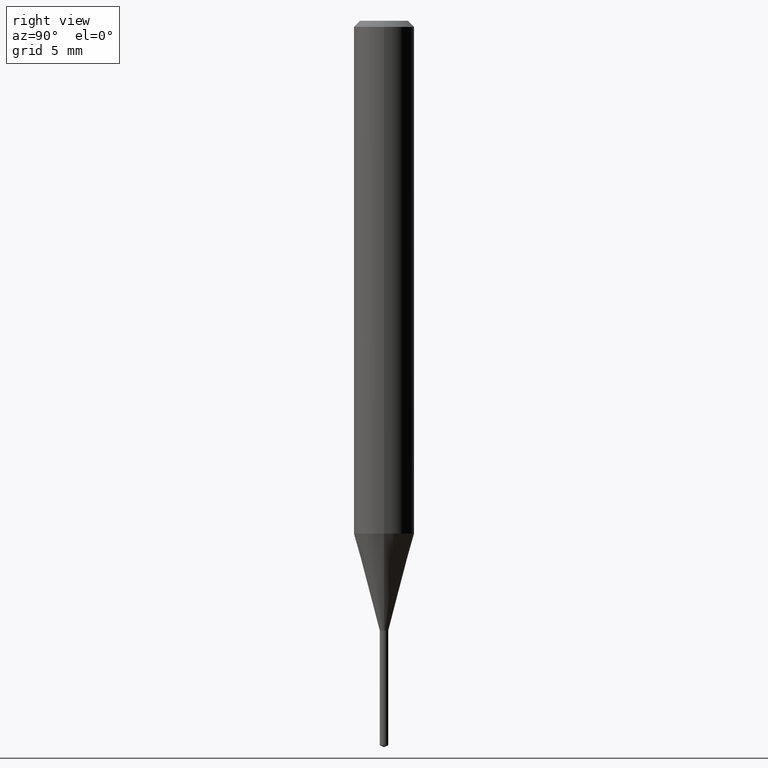
[diagram: clean part render]
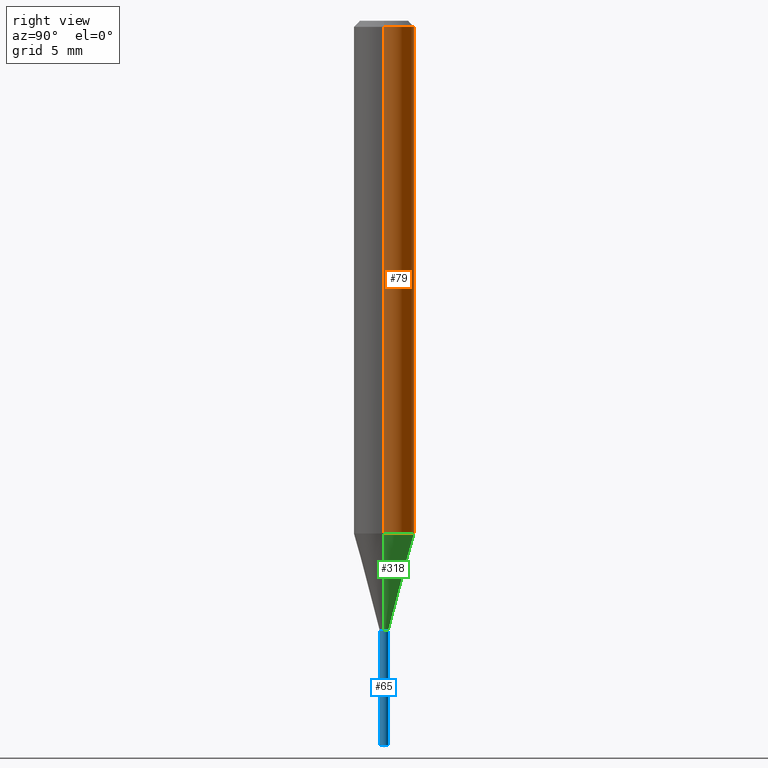
[diagram: same view with three faces highlighted in distinct colors, each labeled with its STEP entity id]
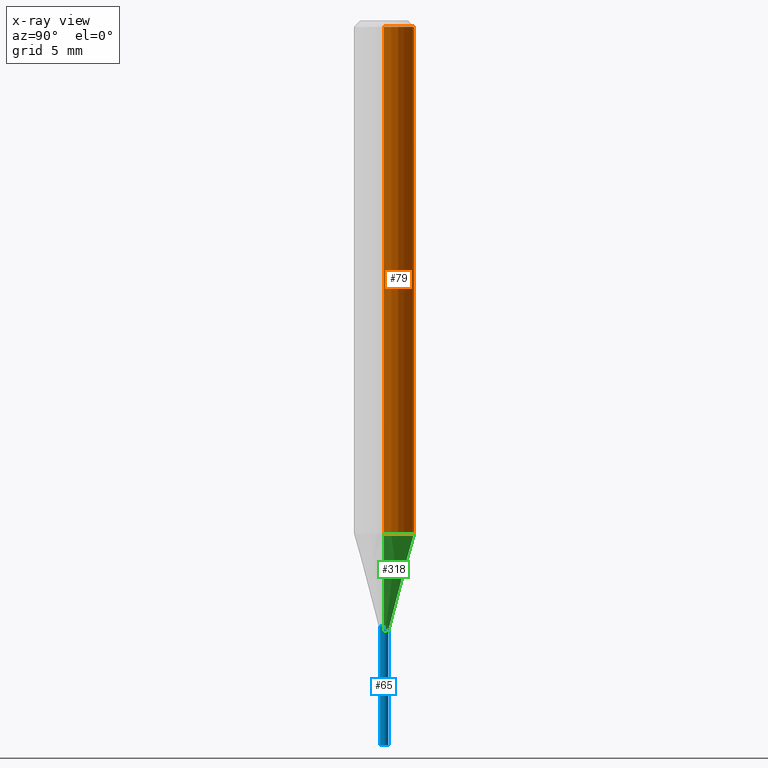
[diagram: x-ray of the same camera — body ghosted, the three highlighted faces saturated]
A machine part, right view with three faces highlighted in distinct colors.
The next image is the same camera in x-ray (body ghosted, the three faces saturated) — at least one of them is partly hidden behind the body in this view.
Their STEP definitions:

[orange] entity #79 — the highlighted cylindrical surface (edge-blend (fillet) strip) has radius 1.5875 mm, axis along (-0, 0, 1).
#2 = ORIENTED_EDGE ( 'NONE', *, *, #170, .T. ) ;
#34 = CARTESIAN_POINT ( 'NONE',  ( 2.589202394846235411E-29, -3.696694810103098248E-15, -1.058775474173935471 ) ) ;
#55 = LINE ( 'NONE', #215, #465 ) ;
#68 = DIRECTION ( 'NONE',  ( 1.000000000000000000, -6.982962677686266711E-15, 0.000000000000000000 ) ) ;
#73 = LINE ( 'NONE', #261, #328 ) ;
#79 = ADVANCED_FACE ( 'NONE', ( #438 ), #99, .T. ) ;
#81 = CARTESIAN_POINT ( 'NONE',  ( -0.06250000000000000000, -1.426079953569255105E-15, -0.01250000000000008570 ) ) ;
#99 = CYLINDRICAL_SURFACE ( 'NONE', #240, 0.06250000000000006939 ) ;
#116 = EDGE_CURVE ( 'NONE', #189, #330, #321, .T. ) ;
#118 = ORIENTED_EDGE ( 'NONE', *, *, #460, .T. ) ;
#135 = DIRECTION ( 'NONE',  ( -2.445468806185136597E-29, 3.491481338843145583E-15, 1.000000000000000000 ) ) ;
#145 = DIRECTION ( 'NONE',  ( -2.445468806185136877E-29, 3.491481338843145188E-15, 1.000000000000000000 ) ) ;
#170 = EDGE_CURVE ( 'NONE', #184, #330, #73, .T. ) ;
#172 = DIRECTION ( 'NONE',  ( -2.445468806185136597E-29, 3.491481338843145583E-15, 1.000000000000000000 ) ) ;
#183 = CARTESIAN_POINT ( 'NONE',  ( -0.06250000000000013878, -3.252605600253034449E-15, -1.058775474173935471 ) ) ;
#184 = VERTEX_POINT ( 'NONE', #183 ) ;
#189 = VERTEX_POINT ( 'NONE', #410 ) ;
#192 = CIRCLE ( 'NONE', #310, 0.06250000000000013878 ) ;
#193 = DIRECTION ( 'NONE',  ( 1.000000000000000000, -6.982962677686262766E-15, 0.000000000000000000 ) ) ;
#208 = CARTESIAN_POINT ( 'NONE',  ( 3.056836007731441853E-31, -4.364351673553962300E-17, -0.01250000000000008570 ) ) ;
#215 = CARTESIAN_POINT ( 'NONE',  ( 0.06250000000000006939, -4.364351673553921624E-16, 3.047610484872463374E-30 ) ) ;
#220 = DIRECTION ( 'NONE',  ( 1.000000000000000000, -6.982962677686266711E-15, 4.876176775795935793E-29 ) ) ;
#240 = AXIS2_PLACEMENT_3D ( 'NONE', #478, #135, #220 ) ;
#261 = CARTESIAN_POINT ( 'NONE',  ( -0.06250000000000006939, 4.440892098500631092E-16, -3.074334431409319267E-30 ) ) ;
#301 = AXIS2_PLACEMENT_3D ( 'NONE', #208, #172, #68 ) ;
#310 = AXIS2_PLACEMENT_3D ( 'NONE', #34, #383, #193 ) ;
#321 = CIRCLE ( 'NONE', #301, 0.06250000000000000000 ) ;
#328 = VECTOR ( 'NONE', #145, 39.37007874015748143 ) ;
#330 = VERTEX_POINT ( 'NONE', #81 ) ;
#350 = CARTESIAN_POINT ( 'NONE',  ( 0.06250000000000013878, -4.133129977458490706E-15, -1.058775474173935471 ) ) ;
#380 = ORIENTED_EDGE ( 'NONE', *, *, #488, .F. ) ;
#383 = DIRECTION ( 'NONE',  ( -2.445468806185136597E-29, 3.491481338843145583E-15, 1.000000000000000000 ) ) ;
#384 = ORIENTED_EDGE ( 'NONE', *, *, #116, .F. ) ;
#392 = DIRECTION ( 'NONE',  ( -2.445468806185136877E-29, 3.491481338843145188E-15, 1.000000000000000000 ) ) ;
#410 = CARTESIAN_POINT ( 'NONE',  ( 0.06250000000000000000, -4.800786840909313294E-16, -0.01250000000000008570 ) ) ;
#422 = VERTEX_POINT ( 'NONE', #350 ) ;
#438 = FACE_OUTER_BOUND ( 'NONE', #464, .T. ) ;
#460 = EDGE_CURVE ( 'NONE', #422, #184, #192, .T. ) ;
#464 = EDGE_LOOP ( 'NONE', ( #118, #2, #384, #380 ) ) ;
#465 = VECTOR ( 'NONE', #392, 39.37007874015748143 ) ;
#478 = CARTESIAN_POINT ( 'NONE',  ( 0.000000000000000000, 0.000000000000000000, 0.000000000000000000 ) ) ;
#488 = EDGE_CURVE ( 'NONE', #422, #189, #55, .T. ) ;

[blue] entity #65 — the highlighted cylindrical surface (edge-blend (fillet) strip) has radius 0.2248 mm, axis along (-0, 0, 1).
#5 = ORIENTED_EDGE ( 'NONE', *, *, #307, .F. ) ;
#16 = CARTESIAN_POINT ( 'NONE',  ( 6.288303211479943643E-17, 0.008849999999995637398, -1.250000000000000000 ) ) ;
#26 = EDGE_CURVE ( 'NONE', #47, #200, #431, .T. ) ;
#39 = DIRECTION ( 'NONE',  ( -6.982962677686265133E-15, -1.000000000000000000, 0.000000000000000000 ) ) ;
#42 = VERTEX_POINT ( 'NONE', #323 ) ;
#47 = VERTEX_POINT ( 'NONE', #214 ) ;
#65 = ADVANCED_FACE ( 'NONE', ( #245 ), #401, .T. ) ;
#89 = CARTESIAN_POINT ( 'NONE',  ( 3.056836007731421306E-29, -4.364351673553932471E-15, -1.250000000000000000 ) ) ;
#102 = VECTOR ( 'NONE', #182, 39.37007874015748143 ) ;
#107 = DIRECTION ( 'NONE',  ( -6.982962677686265922E-15, -1.000000000000000000, 0.000000000000000000 ) ) ;
#110 = AXIS2_PLACEMENT_3D ( 'NONE', #139, #286, #396 ) ;
#112 = CARTESIAN_POINT ( 'NONE',  ( -6.179921969749288897E-17, -0.008850000000004364792, -1.250000000000000000 ) ) ;
#132 = EDGE_CURVE ( 'NONE', #370, #47, #179, .T. ) ;
#139 = CARTESIAN_POINT ( 'NONE',  ( 3.056836007731421306E-29, -4.364351673553932471E-15, -1.250000000000000000 ) ) ;
#144 = CARTESIAN_POINT ( 'NONE',  ( 3.657123408791909676E-29, -5.224227846641668931E-15, -1.495873177225328643 ) ) ;
#149 = ORIENTED_EDGE ( 'NONE', *, *, #132, .T. ) ;
#161 = ORIENTED_EDGE ( 'NONE', *, *, #26, .T. ) ;
#162 = VECTOR ( 'NONE', #249, 39.37007874015748143 ) ;
#179 = CIRCLE ( 'NONE', #335, 0.008850000000000001962 ) ;
#182 = DIRECTION ( 'NONE',  ( -2.441451352419627030E-29, 3.497234561294623100E-15, 1.000000000000000000 ) ) ;
#200 = VERTEX_POINT ( 'NONE', #452 ) ;
#204 = AXIS2_PLACEMENT_3D ( 'NONE', #89, #273, #39 ) ;
#214 = CARTESIAN_POINT ( 'NONE',  ( 6.288303211480543917E-17, 0.008849999999994776975, -1.495873177225328643 ) ) ;
#226 = EDGE_CURVE ( 'NONE', #370, #42, #484, .T. ) ;
#245 = FACE_OUTER_BOUND ( 'NONE', #357, .T. ) ;
#249 = DIRECTION ( 'NONE',  ( -2.441451352419627030E-29, 3.497234561294623100E-15, 1.000000000000000000 ) ) ;
#273 = DIRECTION ( 'NONE',  ( -2.441451352419627310E-29, 3.497234561294623100E-15, 1.000000000000000000 ) ) ;
#286 = DIRECTION ( 'NONE',  ( -2.441451352419627310E-29, 3.497234561294623100E-15, 1.000000000000000000 ) ) ;
#307 = EDGE_CURVE ( 'NONE', #42, #200, #413, .T. ) ;
#323 = CARTESIAN_POINT ( 'NONE',  ( -6.179921969749288897E-17, -0.008850000000004364792, -1.250000000000000000 ) ) ;
#335 = AXIS2_PLACEMENT_3D ( 'NONE', #144, #412, #107 ) ;
#357 = EDGE_LOOP ( 'NONE', ( #149, #161, #5, #456 ) ) ;
#370 = VERTEX_POINT ( 'NONE', #455 ) ;
#396 = DIRECTION ( 'NONE',  ( -6.982962677686265922E-15, -1.000000000000000000, 0.000000000000000000 ) ) ;
#401 = CYLINDRICAL_SURFACE ( 'NONE', #110, 0.008850000000000000228 ) ;
#412 = DIRECTION ( 'NONE',  ( -2.441451352419627310E-29, 3.497234561294623100E-15, 1.000000000000000000 ) ) ;
#413 = CIRCLE ( 'NONE', #204, 0.008850000000000000228 ) ;
#431 = LINE ( 'NONE', #16, #162 ) ;
#452 = CARTESIAN_POINT ( 'NONE',  ( 6.288303211480547614E-17, 0.008849999999995633929, -1.250000000000000000 ) ) ;
#455 = CARTESIAN_POINT ( 'NONE',  ( -6.179921969748689856E-17, -0.008850000000005226949, -1.495873177225328643 ) ) ;
#456 = ORIENTED_EDGE ( 'NONE', *, *, #226, .F. ) ;
#484 = LINE ( 'NONE', #112, #102 ) ;

[green] entity #318 — the highlighted conical surface has half-angle 15 deg.
#4 = LINE ( 'NONE', #314, #151 ) ;
#6 = VECTOR ( 'NONE', #362, 39.37007874015748854 ) ;
#9 = DIRECTION ( 'NONE',  ( 1.000000000000000000, -6.982962677686217801E-15, 0.000000000000000000 ) ) ;
#28 = CARTESIAN_POINT ( 'NONE',  ( -0.008850000000000000228, -4.316307437129247394E-15, -1.259000000000000119 ) ) ;
#34 = CARTESIAN_POINT ( 'NONE',  ( 2.589202394846235411E-29, -3.696694810103098248E-15, -1.058775474173935471 ) ) ;
#38 = EDGE_LOOP ( 'NONE', ( #126, #454, #271, #388 ) ) ;
#44 = DIRECTION ( 'NONE',  ( 1.000000000000000000, -6.982962677686217801E-15, 0.000000000000000000 ) ) ;
#85 = CARTESIAN_POINT ( 'NONE',  ( 3.078845226987087249E-29, -4.395775005603521113E-15, -1.259000000000000119 ) ) ;
#88 = EDGE_CURVE ( 'NONE', #206, #184, #393, .T. ) ;
#126 = ORIENTED_EDGE ( 'NONE', *, *, #394, .T. ) ;
#130 = VERTEX_POINT ( 'NONE', #480 ) ;
#151 = VECTOR ( 'NONE', #461, 39.37007874015748854 ) ;
#183 = CARTESIAN_POINT ( 'NONE',  ( -0.06250000000000013878, -3.252605600253034449E-15, -1.058775474173935471 ) ) ;
#184 = VERTEX_POINT ( 'NONE', #183 ) ;
#187 = CONICAL_SURFACE ( 'NONE', #218, 0.008850000000000000228, 0.2617993877991569573 ) ;
#192 = CIRCLE ( 'NONE', #310, 0.06250000000000013878 ) ;
#193 = DIRECTION ( 'NONE',  ( 1.000000000000000000, -6.982962677686262766E-15, 0.000000000000000000 ) ) ;
#199 = CARTESIAN_POINT ( 'NONE',  ( 3.078845226987087249E-29, -4.395775005603521113E-15, -1.259000000000000119 ) ) ;
#206 = VERTEX_POINT ( 'NONE', #28 ) ;
#218 = AXIS2_PLACEMENT_3D ( 'NONE', #85, #235, #9 ) ;
#235 = DIRECTION ( 'NONE',  ( -2.445468806185136597E-29, 3.491481338843145583E-15, 1.000000000000000000 ) ) ;
#271 = ORIENTED_EDGE ( 'NONE', *, *, #460, .F. ) ;
#310 = AXIS2_PLACEMENT_3D ( 'NONE', #34, #383, #193 ) ;
#314 = CARTESIAN_POINT ( 'NONE',  ( 0.008850000000000000228, -4.457574225301043917E-15, -1.259000000000000119 ) ) ;
#318 = ADVANCED_FACE ( 'NONE', ( #424 ), #187, .T. ) ;
#326 = CARTESIAN_POINT ( 'NONE',  ( -0.008850000000000000228, -4.332891973488752073E-15, -1.259000000000000119 ) ) ;
#334 = CIRCLE ( 'NONE', #468, 0.008850000000000000228 ) ;
#345 = DIRECTION ( 'NONE',  ( -2.445468806185136597E-29, 3.491481338843145583E-15, 1.000000000000000000 ) ) ;
#350 = CARTESIAN_POINT ( 'NONE',  ( 0.06250000000000013878, -4.133129977458490706E-15, -1.058775474173935471 ) ) ;
#362 = DIRECTION ( 'NONE',  ( -0.2588190451025279559, 5.211531920934590485E-15, 0.9659258262890662028 ) ) ;
#383 = DIRECTION ( 'NONE',  ( -2.445468806185136597E-29, 3.491481338843145583E-15, 1.000000000000000000 ) ) ;
#388 = ORIENTED_EDGE ( 'NONE', *, *, #402, .F. ) ;
#393 = LINE ( 'NONE', #326, #6 ) ;
#394 = EDGE_CURVE ( 'NONE', #130, #206, #334, .T. ) ;
#402 = EDGE_CURVE ( 'NONE', #130, #422, #4, .T. ) ;
#422 = VERTEX_POINT ( 'NONE', #350 ) ;
#424 = FACE_OUTER_BOUND ( 'NONE', #38, .T. ) ;
#454 = ORIENTED_EDGE ( 'NONE', *, *, #88, .T. ) ;
#460 = EDGE_CURVE ( 'NONE', #422, #184, #192, .T. ) ;
#461 = DIRECTION ( 'NONE',  ( 0.2588190451025279559, 1.565188264969568522E-15, 0.9659258262890662028 ) ) ;
#468 = AXIS2_PLACEMENT_3D ( 'NONE', #199, #345, #44 ) ;
#480 = CARTESIAN_POINT ( 'NONE',  ( 0.008850000000000000228, -4.457574225301043917E-15, -1.259000000000000119 ) ) ;